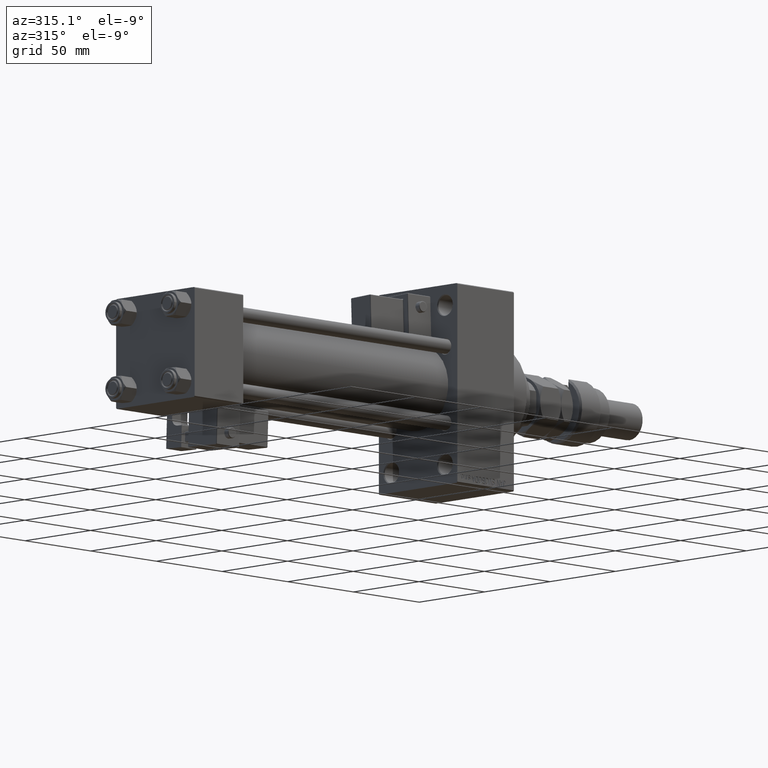
[diagram: clean part render]
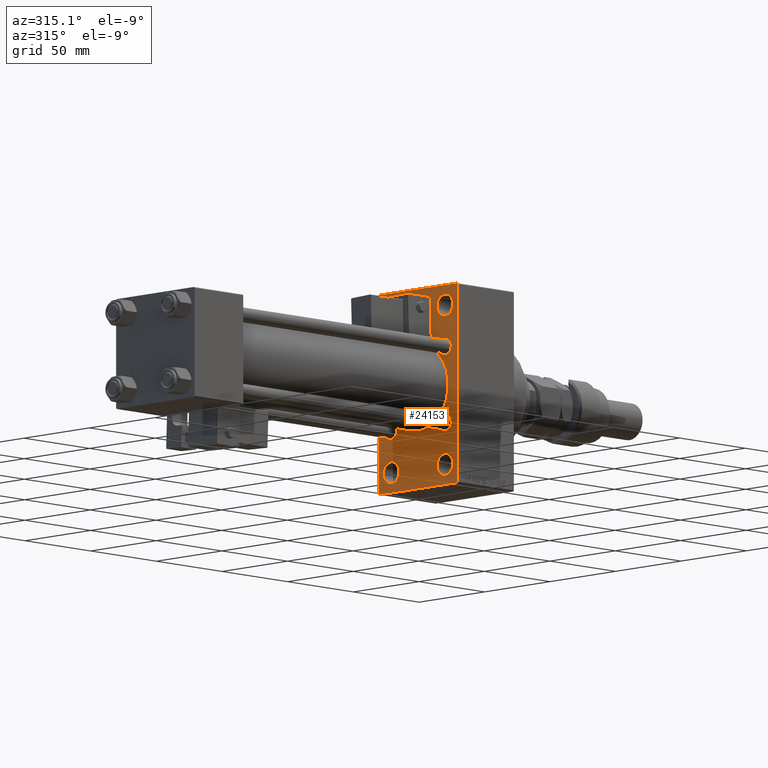
[diagram: same view with one face highlighted and labeled with its STEP entity id]
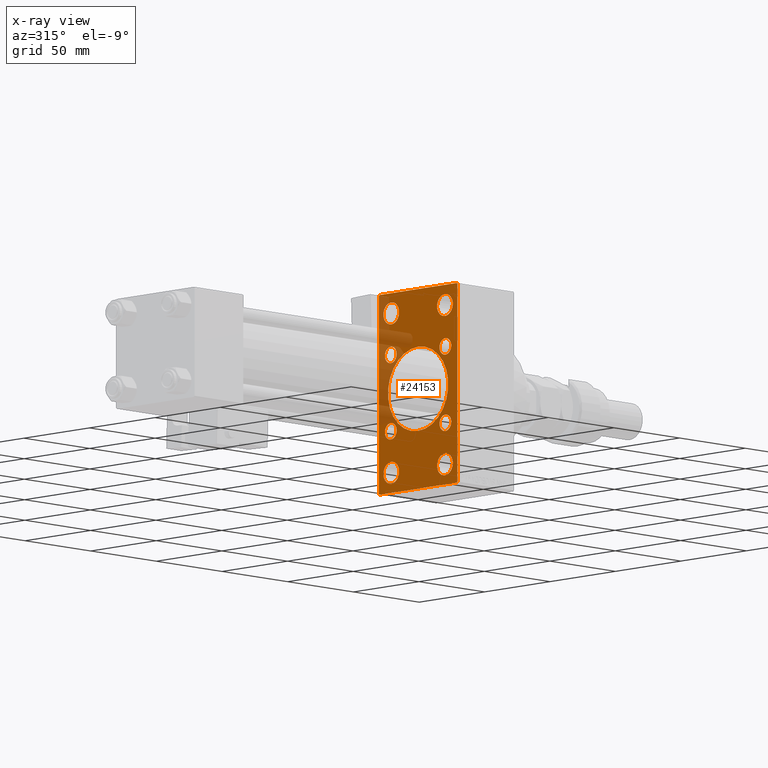
[diagram: x-ray of the same camera — body ghosted, the highlighted face saturated]
A machine part, auxiliary view. The second image highlights one B-rep face of the part: STEP entity #24153.
The next image is the same camera in x-ray: the body ghosted, the highlighted face saturated — about 17% of this face is hidden behind the body in this view.
In plain terms, the highlighted planar face has unit normal (-1, 0, 0).
Its self-contained STEP definition (entity closure, byte-faithful):
#32 = EDGE_CURVE ( 'NONE', #23236, #19677, #23731, .T. ) ;
#164 = AXIS2_PLACEMENT_3D ( 'NONE', #45355, #13454, #9717 ) ;
#380 = ORIENTED_EDGE ( 'NONE', *, *, #19216, .T. ) ;
#519 = VERTEX_POINT ( 'NONE', #532 ) ;
#532 = CARTESIAN_POINT ( 'NONE',  ( 200.0000000000000000, 20.84999999999999787, -16.34999999999999432 ) ) ;
#672 = CIRCLE ( 'NONE', #27825, 4.500000000000007105 ) ;
#766 = EDGE_CURVE ( 'NONE', #34517, #21902, #15624, .T. ) ;
#1272 = FACE_BOUND ( 'NONE', #43992, .T. ) ;
#1290 = EDGE_CURVE ( 'NONE', #30257, #27720, #37751, .T. ) ;
#1464 = CARTESIAN_POINT ( 'NONE',  ( 200.0000000000000000, -42.00000000000052580, -41.99999999999906919 ) ) ;
#1729 = DIRECTION ( 'NONE',  ( -0.000000000000000000, 0.7071067811865647812, 0.7071067811865302533 ) ) ;
#1780 = CIRCLE ( 'NONE', #39125, 5.999999999999977796 ) ;
#2007 = EDGE_CURVE ( 'NONE', #27720, #30257, #17408, .T. ) ;
#2065 = DIRECTION ( 'NONE',  ( 1.000000000000000000, -0.000000000000000000, 0.000000000000000000 ) ) ;
#2087 = DIRECTION ( 'NONE',  ( 0.000000000000000000, 0.000000000000000000, 1.000000000000000000 ) ) ;
#2514 = DIRECTION ( 'NONE',  ( 1.000000000000000000, -0.000000000000000000, 0.000000000000000000 ) ) ;
#2626 = CIRCLE ( 'NONE', #4328, 4.500000000000007105 ) ;
#3140 = CARTESIAN_POINT ( 'NONE',  ( 200.0000000000000000, -20.84999999999999076, 20.85000000000000497 ) ) ;
#3817 = VERTEX_POINT ( 'NONE', #19349 ) ;
#3845 = VECTOR ( 'NONE', #31117, 1000.000000000000000 ) ;
#3871 = CARTESIAN_POINT ( 'NONE',  ( 200.0000000000000000, 20.84999999999999787, 20.85000000000000142 ) ) ;
#3877 = EDGE_LOOP ( 'NONE', ( #16155, #34771 ) ) ;
#3891 = AXIS2_PLACEMENT_3D ( 'NONE', #40275, #44262, #28029 ) ;
#3977 = EDGE_CURVE ( 'NONE', #45568, #23236, #27495, .T. ) ;
#4092 = CARTESIAN_POINT ( 'NONE',  ( 200.0000000000000000, -20.84999999999999076, -16.34999999999999787 ) ) ;
#4328 = AXIS2_PLACEMENT_3D ( 'NONE', #3871, #20095, #32306 ) ;
#4552 = EDGE_LOOP ( 'NONE', ( #47134, #24052 ) ) ;
#4586 = EDGE_CURVE ( 'NONE', #27595, #26573, #16645, .T. ) ;
#4752 = DIRECTION ( 'NONE',  ( 1.000000000000000000, -0.000000000000000000, 0.000000000000000000 ) ) ;
#4779 = ORIENTED_EDGE ( 'NONE', *, *, #3977, .T. ) ;
#4984 = FACE_BOUND ( 'NONE', #50656, .T. ) ;
#5129 = CIRCLE ( 'NONE', #43358, 5.999999999999977796 ) ;
#5138 = EDGE_LOOP ( 'NONE', ( #47481, #11314 ) ) ;
#5231 = ORIENTED_EDGE ( 'NONE', *, *, #48823, .T. ) ;
#5244 = CARTESIAN_POINT ( 'NONE',  ( 200.0000000000000000, 0.000000000000000000, 0.000000000000000000 ) ) ;
#5286 = ORIENTED_EDGE ( 'NONE', *, *, #1290, .T. ) ;
#5789 = CIRCLE ( 'NONE', #15960, 23.00000000000000000 ) ;
#5908 = EDGE_CURVE ( 'NONE', #45568, #33703, #10396, .T. ) ;
#5982 = CARTESIAN_POINT ( 'NONE',  ( 200.0000000000000000, 20.84999999999999787, -20.85000000000000142 ) ) ;
#6356 = CARTESIAN_POINT ( 'NONE',  ( 200.0000000000000000, -2.602085213965210642E-15, 0.000000000000000000 ) ) ;
#6986 = VECTOR ( 'NONE', #33879, 1000.000000000000000 ) ;
#7041 = DIRECTION ( 'NONE',  ( 1.000000000000000000, -0.000000000000000000, 0.000000000000000000 ) ) ;
#7155 = VECTOR ( 'NONE', #12263, 1000.000000000000000 ) ;
#7252 = CARTESIAN_POINT ( 'NONE',  ( 200.0000000000000000, 29.99999999999999645, 54.49999999999999289 ) ) ;
#7440 = VERTEX_POINT ( 'NONE', #45584 ) ;
#7460 = CARTESIAN_POINT ( 'NONE',  ( 200.0000000000000000, 29.49999999999996803, -54.49999999999999289 ) ) ;
#8042 = CARTESIAN_POINT ( 'NONE',  ( 200.0000000000000000, -29.50000000000000355, 54.50000000000000000 ) ) ;
#8921 = EDGE_CURVE ( 'NONE', #24897, #10451, #31129, .T. ) ;
#8975 = FACE_BOUND ( 'NONE', #16261, .T. ) ;
#8995 = CARTESIAN_POINT ( 'NONE',  ( 200.0000000000000000, 20.50000000000000000, 37.50000000000002132 ) ) ;
#9148 = ORIENTED_EDGE ( 'NONE', *, *, #30356, .F. ) ;
#9260 = EDGE_CURVE ( 'NONE', #17460, #23215, #18372, .T. ) ;
#9366 = DIRECTION ( 'NONE',  ( 0.000000000000000000, 0.000000000000000000, 1.000000000000000000 ) ) ;
#9496 = EDGE_CURVE ( 'NONE', #38770, #33703, #29901, .T. ) ;
#9717 = DIRECTION ( 'NONE',  ( 0.000000000000000000, 0.000000000000000000, 1.000000000000000000 ) ) ;
#9774 = CARTESIAN_POINT ( 'NONE',  ( 200.0000000000000000, -30.00000000000000000, 54.00000000000002842 ) ) ;
#10355 = DIRECTION ( 'NONE',  ( 0.000000000000000000, 0.000000000000000000, -1.000000000000000000 ) ) ;
#10396 = LINE ( 'NONE', #37341, #3845 ) ;
#10451 = VERTEX_POINT ( 'NONE', #16059 ) ;
#10851 = CARTESIAN_POINT ( 'NONE',  ( 200.0000000000000000, -20.50000000000000000, 43.50000000000000000 ) ) ;
#11088 = CARTESIAN_POINT ( 'NONE',  ( 200.0000000000000000, 20.50000000000000000, -49.49999999999997158 ) ) ;
#11093 = DIRECTION ( 'NONE',  ( 0.000000000000000000, 0.000000000000000000, 1.000000000000000000 ) ) ;
#11311 = DIRECTION ( 'NONE',  ( 0.000000000000000000, 0.000000000000000000, 1.000000000000000000 ) ) ;
#11314 = ORIENTED_EDGE ( 'NONE', *, *, #766, .T. ) ;
#11493 = CIRCLE ( 'NONE', #26768, 4.500000000000007105 ) ;
#11704 = DIRECTION ( 'NONE',  ( 0.000000000000000000, 0.000000000000000000, 1.000000000000000000 ) ) ;
#11782 = DIRECTION ( 'NONE',  ( 0.000000000000000000, 0.000000000000000000, -1.000000000000000000 ) ) ;
#11787 = EDGE_CURVE ( 'NONE', #10451, #24897, #5789, .T. ) ;
#11861 = EDGE_CURVE ( 'NONE', #519, #3817, #672, .T. ) ;
#12055 = AXIS2_PLACEMENT_3D ( 'NONE', #25924, #50383, #21159 ) ;
#12263 = DIRECTION ( 'NONE',  ( -0.000000000000000000, -0.7071067811865672237, -0.7071067811865279218 ) ) ;
#12618 = VERTEX_POINT ( 'NONE', #7460 ) ;
#12753 = VECTOR ( 'NONE', #31453, 1000.000000000000000 ) ;
#13100 = CARTESIAN_POINT ( 'NONE',  ( 200.0000000000000000, -20.84999999999999076, 20.85000000000000497 ) ) ;
#13406 = ORIENTED_EDGE ( 'NONE', *, *, #11787, .T. ) ;
#13431 = LINE ( 'NONE', #19232, #12753 ) ;
#13454 = DIRECTION ( 'NONE',  ( 1.000000000000000000, -0.000000000000000000, 0.000000000000000000 ) ) ;
#13567 = EDGE_LOOP ( 'NONE', ( #36264, #5286 ) ) ;
#14224 = DIRECTION ( 'NONE',  ( 0.000000000000000000, 0.000000000000000000, 1.000000000000000000 ) ) ;
#15391 = EDGE_CURVE ( 'NONE', #3817, #519, #33830, .T. ) ;
#15624 = CIRCLE ( 'NONE', #45347, 4.500000000000007105 ) ;
#15847 = DIRECTION ( 'NONE',  ( 1.000000000000000000, -0.000000000000000000, 0.000000000000000000 ) ) ;
#15960 = AXIS2_PLACEMENT_3D ( 'NONE', #18865, #51824, #27634 ) ;
#16059 = CARTESIAN_POINT ( 'NONE',  ( 200.0000000000000000, -2.602085213965210642E-15, 23.00000000000000000 ) ) ;
#16129 = VERTEX_POINT ( 'NONE', #48604 ) ;
#16155 = ORIENTED_EDGE ( 'NONE', *, *, #32248, .T. ) ;
#16261 = EDGE_LOOP ( 'NONE', ( #24628, #380 ) ) ;
#16373 = DIRECTION ( 'NONE',  ( 0.000000000000000000, 0.000000000000000000, 1.000000000000000000 ) ) ;
#16403 = ORIENTED_EDGE ( 'NONE', *, *, #8921, .T. ) ;
#16645 = CIRCLE ( 'NONE', #3891, 5.999999999999977796 ) ;
#16772 = CARTESIAN_POINT ( 'NONE',  ( 200.0000000000000000, 20.50000000000000000, -37.50000000000002132 ) ) ;
#17209 = FACE_BOUND ( 'NONE', #42625, .T. ) ;
#17408 = CIRCLE ( 'NONE', #31812, 5.999999999999977796 ) ;
#17460 = VERTEX_POINT ( 'NONE', #40514 ) ;
#17913 = LINE ( 'NONE', #1464, #6986 ) ;
#18372 = CIRCLE ( 'NONE', #28586, 4.500000000000007105 ) ;
#18674 = ORIENTED_EDGE ( 'NONE', *, *, #21219, .T. ) ;
#18722 = DIRECTION ( 'NONE',  ( 0.000000000000000000, 0.000000000000000000, 1.000000000000000000 ) ) ;
#18865 = CARTESIAN_POINT ( 'NONE',  ( 200.0000000000000000, -2.602085213965210642E-15, 0.000000000000000000 ) ) ;
#19032 = VECTOR ( 'NONE', #11782, 1000.000000000000000 ) ;
#19068 = ORIENTED_EDGE ( 'NONE', *, *, #47060, .T. ) ;
#19216 = EDGE_CURVE ( 'NONE', #49114, #37608, #28012, .T. ) ;
#19232 = CARTESIAN_POINT ( 'NONE',  ( 200.0000000000000000, 29.99999999999999645, -54.49999999999999289 ) ) ;
#19349 = CARTESIAN_POINT ( 'NONE',  ( 200.0000000000000000, 20.84999999999999787, -25.35000000000000853 ) ) ;
#19677 = VERTEX_POINT ( 'NONE', #43646 ) ;
#20062 = VERTEX_POINT ( 'NONE', #28340 ) ;
#20095 = DIRECTION ( 'NONE',  ( 1.000000000000000000, -0.000000000000000000, 0.000000000000000000 ) ) ;
#20097 = VECTOR ( 'NONE', #1729, 1000.000000000000114 ) ;
#20101 = CARTESIAN_POINT ( 'NONE',  ( 200.0000000000000000, -20.84999999999999076, -20.85000000000000497 ) ) ;
#20114 = ORIENTED_EDGE ( 'NONE', *, *, #26858, .T. ) ;
#20254 = EDGE_CURVE ( 'NONE', #37608, #49114, #5129, .T. ) ;
#20420 = DIRECTION ( 'NONE',  ( -0.000000000000000000, 0.000000000000000000, 1.000000000000000000 ) ) ;
#20781 = EDGE_LOOP ( 'NONE', ( #21892, #20114, #9148, #40542, #35894, #4779, #35576, #19068 ) ) ;
#21159 = DIRECTION ( 'NONE',  ( 0.000000000000000000, 0.000000000000000000, 1.000000000000000000 ) ) ;
#21219 = EDGE_CURVE ( 'NONE', #29880, #43872, #2626, .T. ) ;
#21892 = ORIENTED_EDGE ( 'NONE', *, *, #34514, .T. ) ;
#21902 = VERTEX_POINT ( 'NONE', #41099 ) ;
#22025 = CARTESIAN_POINT ( 'NONE',  ( 200.0000000000000000, -20.50000000000000000, -43.50000000000000000 ) ) ;
#22942 = EDGE_CURVE ( 'NONE', #23215, #17460, #34958, .T. ) ;
#22982 = DIRECTION ( 'NONE',  ( 0.000000000000000000, 0.7071067811865279218, -0.7071067811865672237 ) ) ;
#22991 = EDGE_CURVE ( 'NONE', #26573, #27595, #51077, .T. ) ;
#23215 = VERTEX_POINT ( 'NONE', #4092 ) ;
#23236 = VERTEX_POINT ( 'NONE', #35744 ) ;
#23323 = DIRECTION ( 'NONE',  ( 0.000000000000000000, 0.000000000000000000, 1.000000000000000000 ) ) ;
#23731 = LINE ( 'NONE', #7252, #19032 ) ;
#23918 = CARTESIAN_POINT ( 'NONE',  ( 200.0000000000000000, 20.84999999999999787, -20.85000000000000142 ) ) ;
#23955 = LINE ( 'NONE', #40185, #7155 ) ;
#24052 = ORIENTED_EDGE ( 'NONE', *, *, #9260, .T. ) ;
#24153 = ADVANCED_FACE ( 'NONE', ( #28645, #40891, #8975, #32892, #33692, #4984, #17209, #37162, #1272, #49125 ), #33420, .T. ) ;
#24628 = ORIENTED_EDGE ( 'NONE', *, *, #20254, .T. ) ;
#24665 = CARTESIAN_POINT ( 'NONE',  ( 200.0000000000000000, 20.84999999999999787, 20.85000000000000142 ) ) ;
#24897 = VERTEX_POINT ( 'NONE', #26353 ) ;
#25924 = CARTESIAN_POINT ( 'NONE',  ( 200.0000000000000000, 20.50000000000000000, 43.50000000000000000 ) ) ;
#26353 = CARTESIAN_POINT ( 'NONE',  ( 200.0000000000000000, 2.146024240737016609E-16, -23.00000000000000000 ) ) ;
#26573 = VERTEX_POINT ( 'NONE', #8995 ) ;
#26768 = AXIS2_PLACEMENT_3D ( 'NONE', #24665, #44886, #33697 ) ;
#26858 = EDGE_CURVE ( 'NONE', #20062, #52115, #17913, .T. ) ;
#27168 = AXIS2_PLACEMENT_3D ( 'NONE', #35797, #28330, #16373 ) ;
#27474 = CARTESIAN_POINT ( 'NONE',  ( 200.0000000000000000, -20.84999999999999076, 16.34999999999999787 ) ) ;
#27495 = LINE ( 'NONE', #48235, #31895 ) ;
#27595 = VERTEX_POINT ( 'NONE', #34163 ) ;
#27634 = DIRECTION ( 'NONE',  ( 0.000000000000000000, 0.000000000000000000, -1.000000000000000000 ) ) ;
#27720 = VERTEX_POINT ( 'NONE', #28014 ) ;
#27825 = AXIS2_PLACEMENT_3D ( 'NONE', #23918, #4752, #11704 ) ;
#27996 = CARTESIAN_POINT ( 'NONE',  ( 200.0000000000000000, 20.84999999999999787, 25.35000000000000853 ) ) ;
#28012 = CIRCLE ( 'NONE', #27168, 5.999999999999977796 ) ;
#28014 = CARTESIAN_POINT ( 'NONE',  ( 200.0000000000000000, -20.50000000000000000, 49.49999999999997158 ) ) ;
#28029 = DIRECTION ( 'NONE',  ( 0.000000000000000000, 0.000000000000000000, 1.000000000000000000 ) ) ;
#28317 = CARTESIAN_POINT ( 'NONE',  ( 200.0000000000000000, 29.49999999999999645, 54.49999999999999289 ) ) ;
#28330 = DIRECTION ( 'NONE',  ( 1.000000000000000000, -0.000000000000000000, 0.000000000000000000 ) ) ;
#28340 = CARTESIAN_POINT ( 'NONE',  ( 200.0000000000000000, -29.50000000000002842, -54.50000000000000000 ) ) ;
#28367 = CARTESIAN_POINT ( 'NONE',  ( 200.0000000000000000, -30.00000000000000000, 54.50000000000000000 ) ) ;
#28586 = AXIS2_PLACEMENT_3D ( 'NONE', #20101, #15847, #11093 ) ;
#28645 = FACE_BOUND ( 'NONE', #13567, .T. ) ;
#29148 = LINE ( 'NONE', #28367, #31374 ) ;
#29880 = VERTEX_POINT ( 'NONE', #51115 ) ;
#29901 = LINE ( 'NONE', #38940, #20097 ) ;
#30257 = VERTEX_POINT ( 'NONE', #31565 ) ;
#30356 = EDGE_CURVE ( 'NONE', #38770, #52115, #29148, .T. ) ;
#31117 = DIRECTION ( 'NONE',  ( 0.000000000000000000, -1.000000000000000000, 1.156482317317871478E-16 ) ) ;
#31129 = CIRCLE ( 'NONE', #39609, 23.00000000000000000 ) ;
#31303 = ORIENTED_EDGE ( 'NONE', *, *, #4586, .T. ) ;
#31374 = VECTOR ( 'NONE', #36878, 1000.000000000000000 ) ;
#31453 = DIRECTION ( 'NONE',  ( 0.000000000000000000, -1.000000000000000000, -1.156482317317871478E-16 ) ) ;
#31565 = CARTESIAN_POINT ( 'NONE',  ( 200.0000000000000000, -20.50000000000000000, 37.50000000000002132 ) ) ;
#31812 = AXIS2_PLACEMENT_3D ( 'NONE', #43991, #7041, #11311 ) ;
#31895 = VECTOR ( 'NONE', #22982, 1000.000000000000000 ) ;
#32248 = EDGE_CURVE ( 'NONE', #16129, #7440, #48466, .T. ) ;
#32306 = DIRECTION ( 'NONE',  ( 0.000000000000000000, 0.000000000000000000, 1.000000000000000000 ) ) ;
#32495 = EDGE_LOOP ( 'NONE', ( #31303, #45902 ) ) ;
#32745 = CARTESIAN_POINT ( 'NONE',  ( 200.0000000000000000, -30.00000000000000000, -54.00000000000001421 ) ) ;
#32892 = FACE_BOUND ( 'NONE', #32495, .T. ) ;
#33420 = PLANE ( 'NONE',  #51119 ) ;
#33563 = CIRCLE ( 'NONE', #44630, 4.500000000000007105 ) ;
#33692 = FACE_BOUND ( 'NONE', #5138, .T. ) ;
#33697 = DIRECTION ( 'NONE',  ( 0.000000000000000000, 0.000000000000000000, 1.000000000000000000 ) ) ;
#33703 = VERTEX_POINT ( 'NONE', #8042 ) ;
#33734 = DIRECTION ( 'NONE',  ( 1.000000000000000000, -0.000000000000000000, 0.000000000000000000 ) ) ;
#33830 = CIRCLE ( 'NONE', #43999, 4.500000000000007105 ) ;
#33879 = DIRECTION ( 'NONE',  ( 0.000000000000000000, -0.7071067811865352493, 0.7071067811865597852 ) ) ;
#34025 = AXIS2_PLACEMENT_3D ( 'NONE', #50481, #41740, #49971 ) ;
#34163 = CARTESIAN_POINT ( 'NONE',  ( 200.0000000000000000, 20.50000000000000000, 49.49999999999997158 ) ) ;
#34514 = EDGE_CURVE ( 'NONE', #12618, #20062, #13431, .T. ) ;
#34517 = VERTEX_POINT ( 'NONE', #27474 ) ;
#34771 = ORIENTED_EDGE ( 'NONE', *, *, #36034, .T. ) ;
#34958 = CIRCLE ( 'NONE', #164, 4.500000000000007105 ) ;
#35065 = DIRECTION ( 'NONE',  ( 1.000000000000000000, 0.000000000000000000, 0.000000000000000000 ) ) ;
#35576 = ORIENTED_EDGE ( 'NONE', *, *, #32, .T. ) ;
#35744 = CARTESIAN_POINT ( 'NONE',  ( 200.0000000000000000, 29.99999999999999645, 53.99999999999996447 ) ) ;
#35797 = CARTESIAN_POINT ( 'NONE',  ( 200.0000000000000000, 20.50000000000000000, -43.50000000000000000 ) ) ;
#35894 = ORIENTED_EDGE ( 'NONE', *, *, #5908, .F. ) ;
#36034 = EDGE_CURVE ( 'NONE', #7440, #16129, #1780, .T. ) ;
#36264 = ORIENTED_EDGE ( 'NONE', *, *, #2007, .T. ) ;
#36878 = DIRECTION ( 'NONE',  ( 0.000000000000000000, 0.000000000000000000, -1.000000000000000000 ) ) ;
#37162 = FACE_BOUND ( 'NONE', #4552, .T. ) ;
#37341 = CARTESIAN_POINT ( 'NONE',  ( 200.0000000000000000, 29.99999999999999645, 54.49999999999999289 ) ) ;
#37608 = VERTEX_POINT ( 'NONE', #16772 ) ;
#37751 = CIRCLE ( 'NONE', #42005, 5.999999999999977796 ) ;
#38770 = VERTEX_POINT ( 'NONE', #9774 ) ;
#38940 = CARTESIAN_POINT ( 'NONE',  ( 200.0000000000000000, -41.99999999999928235, 42.00000000000132871 ) ) ;
#39045 = DIRECTION ( 'NONE',  ( 0.000000000000000000, 0.000000000000000000, 1.000000000000000000 ) ) ;
#39125 = AXIS2_PLACEMENT_3D ( 'NONE', #22025, #33734, #2087 ) ;
#39609 = AXIS2_PLACEMENT_3D ( 'NONE', #6356, #35065, #10355 ) ;
#40100 = DIRECTION ( 'NONE',  ( 1.000000000000000000, -0.000000000000000000, 0.000000000000000000 ) ) ;
#40185 = CARTESIAN_POINT ( 'NONE',  ( 200.0000000000000000, 41.99999999999915445, -42.00000000000149214 ) ) ;
#40275 = CARTESIAN_POINT ( 'NONE',  ( 200.0000000000000000, 20.50000000000000000, 43.50000000000000000 ) ) ;
#40514 = CARTESIAN_POINT ( 'NONE',  ( 200.0000000000000000, -20.84999999999999076, -25.35000000000001208 ) ) ;
#40542 = ORIENTED_EDGE ( 'NONE', *, *, #9496, .T. ) ;
#40891 = FACE_BOUND ( 'NONE', #3877, .T. ) ;
#41099 = CARTESIAN_POINT ( 'NONE',  ( 200.0000000000000000, -20.84999999999999076, 25.35000000000001208 ) ) ;
#41152 = DIRECTION ( 'NONE',  ( -1.000000000000000000, 0.000000000000000000, -0.000000000000000000 ) ) ;
#41630 = DIRECTION ( 'NONE',  ( 1.000000000000000000, -0.000000000000000000, 0.000000000000000000 ) ) ;
#41636 = ORIENTED_EDGE ( 'NONE', *, *, #11861, .T. ) ;
#41740 = DIRECTION ( 'NONE',  ( 1.000000000000000000, -0.000000000000000000, 0.000000000000000000 ) ) ;
#42005 = AXIS2_PLACEMENT_3D ( 'NONE', #10851, #2065, #23323 ) ;
#42625 = EDGE_LOOP ( 'NONE', ( #41636, #47192 ) ) ;
#43358 = AXIS2_PLACEMENT_3D ( 'NONE', #50379, #41630, #14224 ) ;
#43646 = CARTESIAN_POINT ( 'NONE',  ( 200.0000000000000000, 29.99999999999999645, -53.99999999999999289 ) ) ;
#43872 = VERTEX_POINT ( 'NONE', #27996 ) ;
#43991 = CARTESIAN_POINT ( 'NONE',  ( 200.0000000000000000, -20.50000000000000000, 43.50000000000000000 ) ) ;
#43992 = EDGE_LOOP ( 'NONE', ( #13406, #16403 ) ) ;
#43999 = AXIS2_PLACEMENT_3D ( 'NONE', #5982, #2514, #18722 ) ;
#44262 = DIRECTION ( 'NONE',  ( 1.000000000000000000, -0.000000000000000000, 0.000000000000000000 ) ) ;
#44630 = AXIS2_PLACEMENT_3D ( 'NONE', #13100, #45795, #9366 ) ;
#44886 = DIRECTION ( 'NONE',  ( 1.000000000000000000, -0.000000000000000000, 0.000000000000000000 ) ) ;
#45347 = AXIS2_PLACEMENT_3D ( 'NONE', #3140, #40100, #39045 ) ;
#45355 = CARTESIAN_POINT ( 'NONE',  ( 200.0000000000000000, -20.84999999999999076, -20.85000000000000497 ) ) ;
#45568 = VERTEX_POINT ( 'NONE', #28317 ) ;
#45584 = CARTESIAN_POINT ( 'NONE',  ( 200.0000000000000000, -20.50000000000000000, -49.49999999999997158 ) ) ;
#45795 = DIRECTION ( 'NONE',  ( 1.000000000000000000, -0.000000000000000000, 0.000000000000000000 ) ) ;
#45902 = ORIENTED_EDGE ( 'NONE', *, *, #22991, .T. ) ;
#47060 = EDGE_CURVE ( 'NONE', #19677, #12618, #23955, .T. ) ;
#47134 = ORIENTED_EDGE ( 'NONE', *, *, #22942, .T. ) ;
#47192 = ORIENTED_EDGE ( 'NONE', *, *, #15391, .T. ) ;
#47481 = ORIENTED_EDGE ( 'NONE', *, *, #48585, .T. ) ;
#48235 = CARTESIAN_POINT ( 'NONE',  ( 200.0000000000000000, 42.00000000000081002, 41.99999999999847944 ) ) ;
#48466 = CIRCLE ( 'NONE', #34025, 5.999999999999977796 ) ;
#48585 = EDGE_CURVE ( 'NONE', #21902, #34517, #33563, .T. ) ;
#48604 = CARTESIAN_POINT ( 'NONE',  ( 200.0000000000000000, -20.50000000000000000, -37.50000000000002132 ) ) ;
#48823 = EDGE_CURVE ( 'NONE', #43872, #29880, #11493, .T. ) ;
#49114 = VERTEX_POINT ( 'NONE', #11088 ) ;
#49125 = FACE_OUTER_BOUND ( 'NONE', #20781, .T. ) ;
#49971 = DIRECTION ( 'NONE',  ( 0.000000000000000000, 0.000000000000000000, 1.000000000000000000 ) ) ;
#50379 = CARTESIAN_POINT ( 'NONE',  ( 200.0000000000000000, 20.50000000000000000, -43.50000000000000000 ) ) ;
#50383 = DIRECTION ( 'NONE',  ( 1.000000000000000000, -0.000000000000000000, 0.000000000000000000 ) ) ;
#50481 = CARTESIAN_POINT ( 'NONE',  ( 200.0000000000000000, -20.50000000000000000, -43.50000000000000000 ) ) ;
#50656 = EDGE_LOOP ( 'NONE', ( #5231, #18674 ) ) ;
#51077 = CIRCLE ( 'NONE', #12055, 5.999999999999977796 ) ;
#51115 = CARTESIAN_POINT ( 'NONE',  ( 200.0000000000000000, 20.84999999999999787, 16.34999999999999432 ) ) ;
#51119 = AXIS2_PLACEMENT_3D ( 'NONE', #5244, #41152, #20420 ) ;
#51824 = DIRECTION ( 'NONE',  ( 1.000000000000000000, 0.000000000000000000, 0.000000000000000000 ) ) ;
#52115 = VERTEX_POINT ( 'NONE', #32745 ) ;